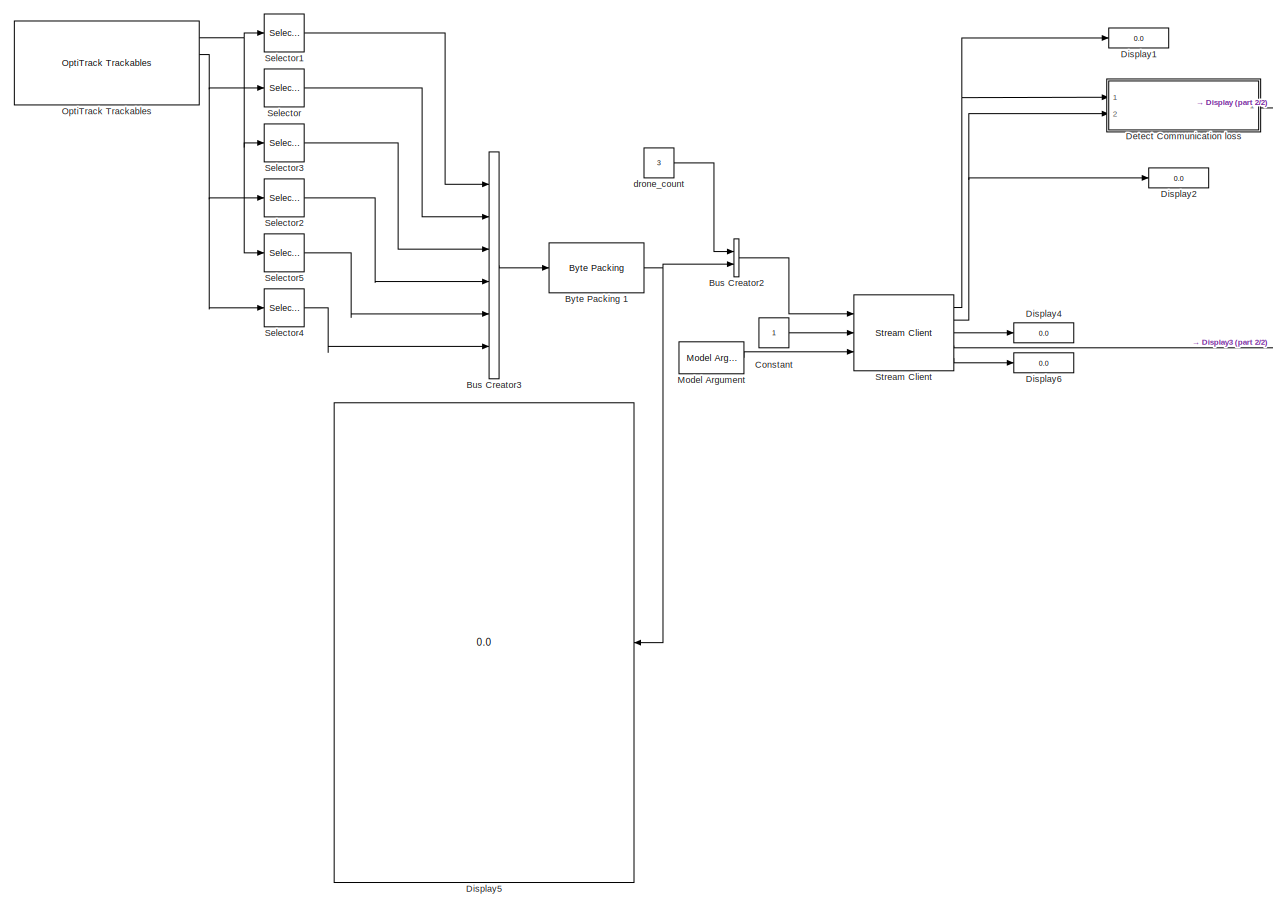
[diagram: root canvas - part 1/2, most of the canvas]
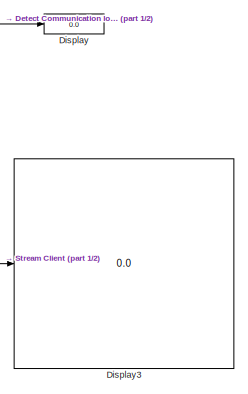
[diagram: root canvas - part 2/2, top right region]
MODEL slx_1c7930e617d7
KIND model
CONFIG AbsTol = auto
CONFIG EnableMultiTasking = on
CONFIG FixedStep = 0.001
CONFIG MaxStep = auto
CONFIG MinStep = auto
CONFIG RelTol = 1e-3
CONFIG SampleTimeConstraint = Unconstrained
CONFIG Solver = ode2
CONFIG SolverName = ode2
CONFIG StartTime = 0.0
CONFIG StopTime = inf
BLOCK [BusCreator] Bus Creator2
  DisplayOption = bar
  InheritFromInputs = on
  Inputs = 2
  Ports = [2, 1]
BLOCK [BusCreator] Bus Creator3
  DisplayOption = bar
  InheritFromInputs = on
  Inputs = 6
  Ports = [6, 1]
BLOCK [Reference] Byte Packing 1  REF=xpcutilitieslib/Byte Packing 
  Ports = [1, 1]
  SourceBlock = xpcutilitieslib/Byte Packing
  SourceProductBaseCode = XP
  SourceProductName = Simulink Real-Time
  SourceType = xpcbytepacking
BLOCK [Constant] Constant
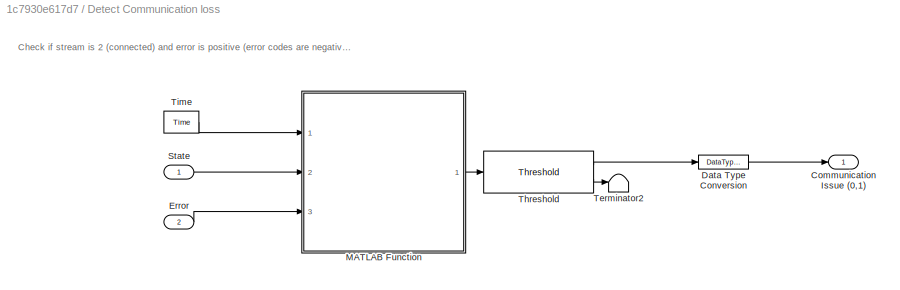
BLOCK [SubSystem] Detect Communication loss
  Ports = [2, 1]
  RequestExecContextInheritance = off
BLOCK [Outport] Detect Communication loss/Communication Issue (0,1)
  IconDisplay = Port number
BLOCK [DataTypeConversion] Detect Communication loss/Data Type Conversion
  RndMeth = Floor
  SaturateOnIntegerOverflow = off
BLOCK [Inport] Detect Communication loss/Error
  IconDisplay = Port number
  Port = 2
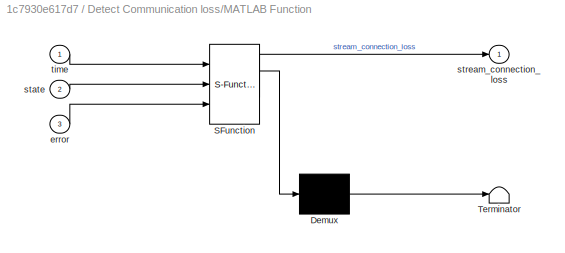
BLOCK [SubSystem] Detect Communication loss/MATLAB Function
  ErrorFcn = Stateflow.Translate.translate
  PermitHierarchicalResolution = ExplicitOnly
  Ports = [3, 1]
  RequestExecContextInheritance = off
  SFBlockType = MATLAB Function
  TreatAsAtomicUnit = on
BLOCK [Demux] Detect Communication loss/MATLAB Function/ Demux 
  Outputs = 1
  Ports = [1, 1]
BLOCK [S-Function] Detect Communication loss/MATLAB Function/ SFunction 
  EnableBusSupport = on
  FunctionName = sf_sfun
  PortCounts = [3 2]
  Ports = [3, 2]
  SFcnIsStateOwnerBlock = off
  SFunctionDeploymentMode = off
  Tag = Stateflow S-Function TCP_client 3
BLOCK [Terminator] Detect Communication loss/MATLAB Function/ Terminator 
BLOCK [Inport] Detect Communication loss/MATLAB Function/error
  IconDisplay = Port number
  Port = 3
BLOCK [Inport] Detect Communication loss/MATLAB Function/state
  IconDisplay = Port number
  Port = 2
BLOCK [Outport] Detect Communication loss/MATLAB Function/stream_connection_loss
  IconDisplay = Port number
BLOCK [Inport] Detect Communication loss/MATLAB Function/time
  IconDisplay = Port number
BLOCK [Inport] Detect Communication loss/State
  IconDisplay = Port number
BLOCK [Terminator] Detect Communication loss/Terminator2
BLOCK [Reference] Detect Communication loss/Threshold  REF=quarc_library/Discontinuities/Threshold
  Ports = [1, 2]
  SourceBlock = quarc_library/Discontinuities/Threshold
  SourceProductName = QUARC Targets
  SourceType = Threshold
BLOCK [Reference] Detect Communication loss/Time  REF=quarc_library/Sources/Time/Time
  Ports = [0, 1]
  SourceBlock = quarc_library/Sources/Time/Time
  SourceProductName = QUARC Targets
  SourceType = Time
BLOCK [Display] Display
  Decimation = 1
  Ports = [1]
BLOCK [Display] Display1
  Decimation = 1
  Ports = [1]
BLOCK [Display] Display2
  Decimation = 1
  Ports = [1]
BLOCK [Display] Display3
  Decimation = 1
  Ports = [1]
BLOCK [Display] Display4
  Decimation = 1
  Ports = [1]
BLOCK [Display] Display5
  Decimation = 7
  Format = hex (Stored Integer)
  Ports = [1]
BLOCK [Display] Display6
  Decimation = 1
  Ports = [1]
BLOCK [Reference] Model Argument  REF=quarc_library/Sources/Signals/Model Argument
  AttributesFormatString = (-%<argument_name>)
  Ports = [0, 1]
  SourceBlock = quarc_library/Sources/Signals/Model Argument
  SourceProductName = QUARC Targets
  SourceType = Model Argument
BLOCK [Reference] OptiTrack Trackables  REF=quarc_library/Devices/Third-Party/NaturalPoint/OptiTrack/OptiTrack Trackables
  Ports = [0, 4]
  SourceBlock = quarc_library/Devices/Third-Party/NaturalPoint/OptiTrack/OptiTrack Trackables
  SourceProductName = QUARC Targets
  SourceType = OptiTrack Rigid Body Position
BLOCK [Selector] Selector
  IndexOptions = Index vector (dialog)
  Indices = [1:4]
  InputPortWidth = 12
  OutputSizes = 1
  Ports = [1, 1]
BLOCK [Selector] Selector1
  IndexOptions = Index vector (dialog)
  Indices = [1:3]
  InputPortWidth = 9
  OutputSizes = 1
  Ports = [1, 1]
BLOCK [Selector] Selector2
  IndexOptions = Index vector (dialog)
  Indices = [5:8]
  InputPortWidth = 12
  OutputSizes = 1
  Ports = [1, 1]
BLOCK [Selector] Selector3
  IndexOptions = Index vector (dialog)
  Indices = [4:6]
  InputPortWidth = 9
  OutputSizes = 1
  Ports = [1, 1]
BLOCK [Selector] Selector4
  IndexOptions = Index vector (dialog)
  Indices = [9:12]
  InputPortWidth = 12
  OutputSizes = 1
  Ports = [1, 1]
BLOCK [Selector] Selector5
  IndexOptions = Index vector (dialog)
  Indices = [7:9]
  InputPortWidth = 9
  OutputSizes = 1
  Ports = [1, 1]
BLOCK [Reference] Stream Client  REF=quarc_library/Communications/Basic/Stream Client
  Ports = [3, 5]
  SourceBlock = quarc_library/Communications/Basic/Stream Client
  SourceProductName = QUARC Targets
  SourceType = Stream Client
BLOCK [Constant] drone_count
  OutDataTypeStr = uint8
  Value = 3
ANNOTATION Detect Communication loss: Check if stream is 2 (connected) and error is positive (error codes are negative). Otherwise issue a communication error.
LINE Bus Creator2:1 -> Stream Client:1
LINE Bus Creator3:1 -> Byte Packing 1:1
NET Byte Packing 1:1 -> Bus Creator2:2, Display5:1
LINE Constant:1 -> Stream Client:2
LINE Detect Communication loss/Data Type Conversion:1 -> Detect Communication loss/Communication Issue (0,1):1
LINE Detect Communication loss/Error:1 -> Detect Communication loss/MATLAB Function:3
LINE Detect Communication loss/MATLAB Function:1 -> Detect Communication loss/Threshold:1
LINE Detect Communication loss/State:1 -> Detect Communication loss/MATLAB Function:2
LINE Detect Communication loss/Threshold:1 -> Detect Communication loss/Data Type Conversion:1
LINE Detect Communication loss/Threshold:2 -> Detect Communication loss/Terminator2:1
LINE Detect Communication loss/Time:1 -> Detect Communication loss/MATLAB Function:1
LINE Detect Communication loss:1 -> Display:1
LINE Model Argument:1 -> Stream Client:3
NET OptiTrack Trackables:1 -> Selector1:1, Selector3:1, Selector5:1
NET OptiTrack Trackables:2 -> Selector2:1, Selector4:1, Selector:1
LINE Selector1:1 -> Bus Creator3:1
LINE Selector2:1 -> Bus Creator3:4
LINE Selector3:1 -> Bus Creator3:3
LINE Selector4:1 -> Bus Creator3:6
LINE Selector5:1 -> Bus Creator3:5
LINE Selector:1 -> Bus Creator3:2
NET Stream Client:1 -> Detect Communication loss:1, Display1:1
NET Stream Client:2 -> Detect Communication loss:2, Display2:1
LINE Stream Client:3 -> Display4:1
LINE Stream Client:4 -> Display3:1
LINE Stream Client:5 -> Display6:1
LINE drone_count:1 -> Bus Creator2:1
note: NET lines group one-source signal fan-out (src -> all destinations, sorted); 1:1 wires keep LINE
CHART Detect Communication loss/MATLAB Function states=1 transitions=1
  STATE_LABEL 'eML_blk_kernel()'
  STATE_LABEL 'SCRIPT:\nfunction stream_connection_loss  = fcn(time, state, error)\n\nstream_connection_loss = 0;\nif time > 1\n    if ~((state == 2)&&(error >= 0))\n        % stream connection is not established correctly\n        stream_connection_loss = 1;\n    end\nend\n'
